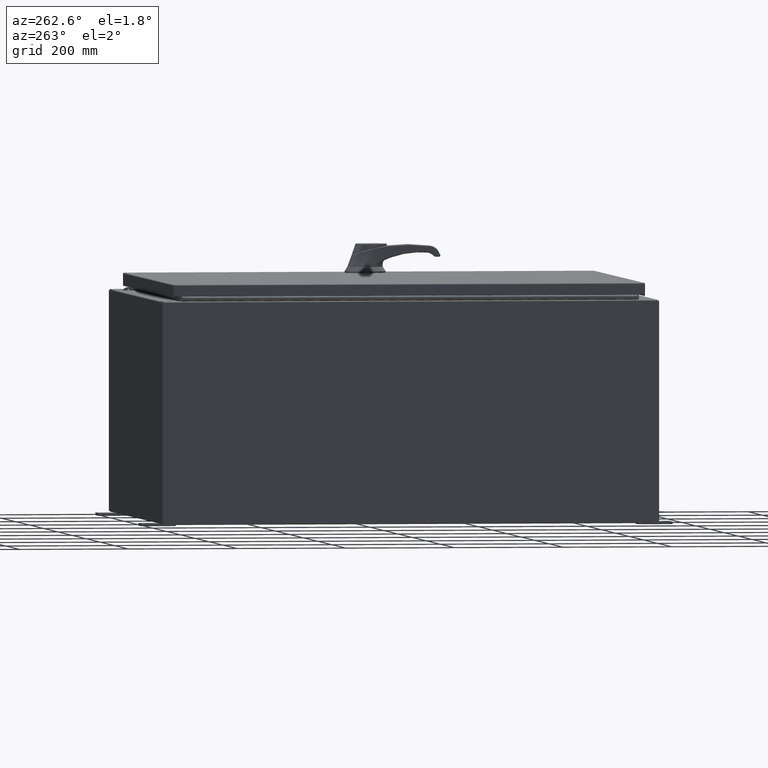
[diagram: clean part render]
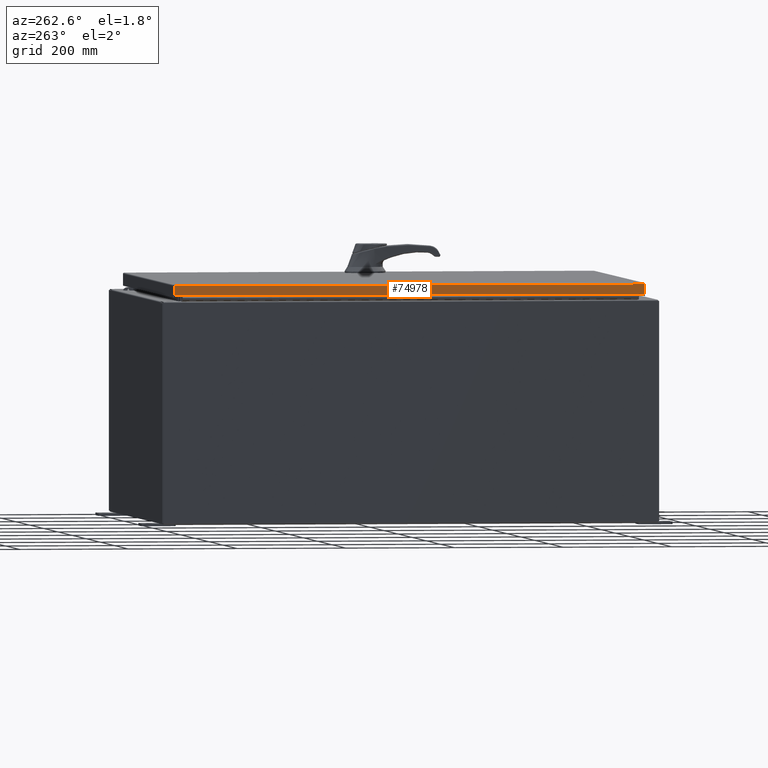
[diagram: same view with one face highlighted and labeled with its STEP entity id]
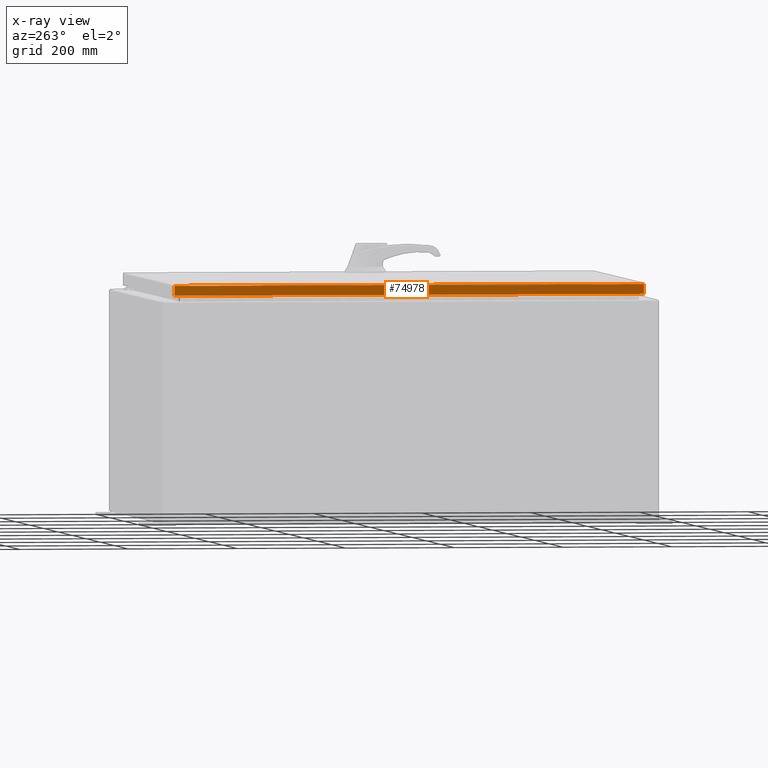
[diagram: x-ray of the same camera — body ghosted, the highlighted face saturated]
A machine part, auxiliary view. The second image highlights one B-rep face of the part: STEP entity #74978.
The next image is the same camera in x-ray: the body ghosted, the highlighted face saturated — about 0% of this face is hidden behind the body in this view.
In plain terms, the highlighted planar face has unit normal (1, 0, -0).
Its self-contained STEP definition (entity closure, byte-faithful):
#124 = DIRECTION ( 'NONE',  ( -3.034122441942816500E-015, 6.982962677686265900E-015, -1.000000000000000000 ) ) ;
#2400 = EDGE_CURVE ( 'NONE', #84489, #112748, #86137, .T. ) ;
#6248 = DIRECTION ( 'NONE',  ( -3.034122441942816500E-015, 0.0000000000000000000, -1.000000000000000000 ) ) ;
#8806 = CARTESIAN_POINT ( 'NONE',  ( -14.07800000000000700, -17.00515786437626900, -0.08770000000000007000 ) ) ;
#9038 = DIRECTION ( 'NONE',  ( 4.379057701015054300E-047, 1.000000000000000000, 1.238552822680358400E-016 ) ) ;
#9523 = CARTESIAN_POINT ( 'NONE',  ( -14.07800000000000700, -17.00515786437626900, -0.07469999999999976700 ) ) ;
#16402 = ORIENTED_EDGE ( 'NONE', *, *, #22487, .F. ) ;
#17348 = VECTOR ( 'NONE', #83965, 39.37007874015748100 ) ;
#17720 = EDGE_CURVE ( 'NONE', #87949, #55616, #65650, .T. ) ;
#22173 = ORIENTED_EDGE ( 'NONE', *, *, #25177, .T. ) ;
#22487 = EDGE_CURVE ( 'NONE', #55616, #84489, #51234, .T. ) ;
#22575 = FACE_OUTER_BOUND ( 'NONE', #86138, .T. ) ;
#24700 = ORIENTED_EDGE ( 'NONE', *, *, #2400, .F. ) ;
#25177 = EDGE_CURVE ( 'NONE', #87949, #112748, #116103, .T. ) ;
#25343 = ORIENTED_EDGE ( 'NONE', *, *, #17720, .F. ) ;
#25899 = DIRECTION ( 'NONE',  ( 3.757920914826097400E-031, -1.000000000000000000, -1.107764513432648300E-045 ) ) ;
#28961 = VECTOR ( 'NONE', #124, 39.37007874015748100 ) ;
#44472 = PLANE ( 'NONE',  #106320 ) ;
#44871 = CARTESIAN_POINT ( 'NONE',  ( -14.07800000000000800, 17.00515786437627600, -0.7949999999999954900 ) ) ;
#51234 = LINE ( 'NONE', #9523, #28961 ) ;
#55616 = VERTEX_POINT ( 'NONE', #8806 ) ;
#58657 = CARTESIAN_POINT ( 'NONE',  ( -14.07800000000000800, -17.00515786437626500, -0.7949999999999996000 ) ) ;
#60614 = VECTOR ( 'NONE', #9038, 39.37007874015748100 ) ;
#62952 = CARTESIAN_POINT ( 'NONE',  ( -14.07800000000000700, 17.00515786437627200, -0.08770000000000004200 ) ) ;
#63738 = DIRECTION ( 'NONE',  ( 1.000000000000000000, 3.757920914826096500E-031, -3.034122441942816500E-015 ) ) ;
#64671 = CARTESIAN_POINT ( 'NONE',  ( -14.07800000000000700, 17.00515786437627200, 1.617215720887851800E-013 ) ) ;
#65340 = CARTESIAN_POINT ( 'NONE',  ( -14.07800000000000800, -17.09400000000000100, -0.7949999999999997100 ) ) ;
#65650 = LINE ( 'NONE', #95214, #116509 ) ;
#74978 = ADVANCED_FACE ( 'NONE', ( #22575 ), #44472, .F. ) ;
#83965 = DIRECTION ( 'NONE',  ( -3.034122441942816500E-015, 6.982962677686265900E-015, -1.000000000000000000 ) ) ;
#84489 = VERTEX_POINT ( 'NONE', #58657 ) ;
#86137 = LINE ( 'NONE', #65340, #60614 ) ;
#86138 = EDGE_LOOP ( 'NONE', ( #25343, #22173, #24700, #16402 ) ) ;
#87949 = VERTEX_POINT ( 'NONE', #62952 ) ;
#95214 = CARTESIAN_POINT ( 'NONE',  ( -14.07800000000000700, -17.09400000000000100, -0.08770000000000004200 ) ) ;
#106320 = AXIS2_PLACEMENT_3D ( 'NONE', #121107, #63738, #6248 ) ;
#112748 = VERTEX_POINT ( 'NONE', #44871 ) ;
#116103 = LINE ( 'NONE', #64671, #17348 ) ;
#116509 = VECTOR ( 'NONE', #25899, 39.37007874015748100 ) ;
#121107 = CARTESIAN_POINT ( 'NONE',  ( -14.07800000000000700, -5.290401063892181200E-030, 4.297518939368256700E-014 ) ) ;